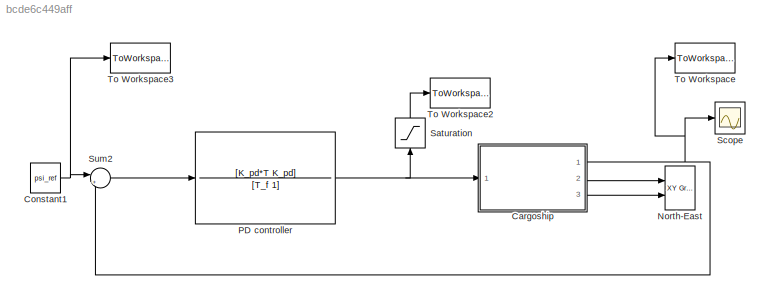
MODEL slx_bcde6c449aff
KIND model
CONFIG AbsTol = auto
CONFIG EnableMultiTasking = on
CONFIG FixedStep = auto
CONFIG MaxStep = auto
CONFIG MinStep = auto
CONFIG RelTol = 1e-3
CONFIG SampleTimeConstraint = Unconstrained
CONFIG Solver = ode45
CONFIG SolverName = ode45
CONFIG StartTime = 0.0
CONFIG StopTime = 5000
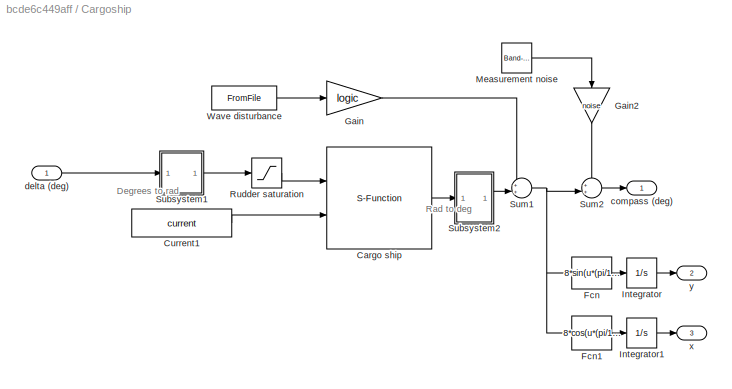
BLOCK [SubSystem] Cargoship
  Ports = [1, 3]
  RequestExecContextInheritance = off
  Variant = off
BLOCK [S-Function] Cargoship/Cargo ship
  EnableBusSupport = off
  FunctionName = Cargoship
  Ports = [2, 1]
  SFcnIsStateOwnerBlock = off
  SFunctionDeploymentMode = off
BLOCK [Constant] Cargoship/Current1
  Value = current
BLOCK [Fcn] Cargoship/Fcn
  Expr = 8*sin(u*(pi/180))
BLOCK [Fcn] Cargoship/Fcn1
  Expr = 8*cos(u*(pi/180))
BLOCK [Gain] Cargoship/Gain
  Gain = logic
BLOCK [Gain] Cargoship/Gain2
  Gain = noise
BLOCK [Integrator] Cargoship/Integrator
  Ports = [1, 1]
BLOCK [Integrator] Cargoship/Integrator1
  Ports = [1, 1]
BLOCK [Reference] Cargoship/Measurement noise  REF=simulink/Sources/Band-Limited
White Noise
  Ports = [0, 1]
  SourceBlock = simulink/Sources/Band-Limited\nWhite Noise
  SourceProductBaseCode = SL
  SourceProductName = Simulink
  SourceType = Band-Limited White Noise.
BLOCK [Saturate] Cargoship/Rudder saturation
  InputPortMap = u0
  LowerLimit = -45*(pi/180)
  Ports = [1, 1]
  UpperLimit = 45*(pi/180)
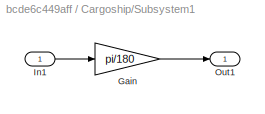
BLOCK [SubSystem] Cargoship/Subsystem1
  Ports = [1, 1]
  RequestExecContextInheritance = off
  Variant = off
BLOCK [Gain] Cargoship/Subsystem1/Gain
  Gain = pi/180
BLOCK [Inport] Cargoship/Subsystem1/In1
  IconDisplay = Port number
BLOCK [Outport] Cargoship/Subsystem1/Out1
  IconDisplay = Port number
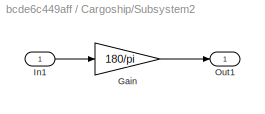
BLOCK [SubSystem] Cargoship/Subsystem2
  Ports = [1, 1]
  RequestExecContextInheritance = off
  Variant = off
BLOCK [Gain] Cargoship/Subsystem2/Gain
  Gain = 180/pi
BLOCK [Inport] Cargoship/Subsystem2/In1
  IconDisplay = Port number
BLOCK [Outport] Cargoship/Subsystem2/Out1
  IconDisplay = Port number
BLOCK [Sum] Cargoship/Sum1
  IconShape = round
  InputSameDT = off
  Inputs = ++|
  OutDataTypeStr = Inherit: Inherit via internal rule
  Ports = [2, 1]
BLOCK [Sum] Cargoship/Sum2
  IconShape = round
  InputSameDT = off
  Inputs = ++|
  OutDataTypeStr = Inherit: Inherit via internal rule
  Ports = [2, 1]
BLOCK [FromFile] Cargoship/Wave disturbance
  FileName = wave.mat
  SampleTime = 0
BLOCK [Outport] Cargoship/compass (deg)
  IconDisplay = Port number
BLOCK [Inport] Cargoship/delta (deg)
  IconDisplay = Port number
BLOCK [Outport] Cargoship/x
  IconDisplay = Port number
  Port = 3
BLOCK [Outport] Cargoship/y
  IconDisplay = Port number
  Port = 2
BLOCK [Constant] Constant1
  Value = psi_ref
BLOCK [Reference] North-East  REF=simulink/Sinks/XY Graph
  Ports = [2]
  SourceBlock = simulink/Sinks/XY Graph
  SourceProductBaseCode = SL
  SourceProductName = Simulink
  SourceType = XY scope.
BLOCK [TransferFcn] PD controller
  Denominator = [T_f 1]
  Numerator = [K_pd*T K_pd]
BLOCK [Saturate] Saturation
  InputPortMap = u0
  LowerLimit = -45
  Ports = [1, 1]
  UpperLimit = 45
BLOCK [Scope] Scope
  NumInputPorts = 1
  Ports = [1]
  ScopeSpecificationString = Simulink.scopes.TimeScopeBlockCfg('CurrentConfiguration', extmgr.ConfigurationSet(extmgr.Configuration('Core','General UI',true),extmgr.Configuration('Core','Source UI',true),extmgr.Configuration('Sources','WiredSimulink',true,'DataLoggingSaveFormat','StructureWithTime','DataLoggingLimitDataPoints',true,'DataLoggingDecimation','1','DataLoggingDecimateData',true),extmgr.Configuration('Visuals','Tim...<+1704ch>
BLOCK [Sum] Sum2
  IconShape = round
  InputSameDT = off
  Inputs = |+-
  OutDataTypeStr = Inherit: Inherit via internal rule
  Ports = [2, 1]
  SaturateOnIntegerOverflow = off
BLOCK [ToWorkspace] To Workspace
  FixptAsFi = on
  MaxDataPoints = 9999999
  Ports = [1]
  SampleTime = -1
  Save2DSignal = 3-D array (concatenate along third dimension)
  SaveFormat = Structure With Time
  VariableName = compass
BLOCK [ToWorkspace] To Workspace2
  FixptAsFi = on
  MaxDataPoints = 9999999
  Ports = [1]
  SampleTime = -1
  Save2DSignal = 3-D array (concatenate along third dimension)
  SaveFormat = Structure With Time
  VariableName = rudder
BLOCK [ToWorkspace] To Workspace3
  FixptAsFi = on
  MaxDataPoints = 9999999
  Ports = [1]
  SampleTime = -1
  Save2DSignal = 3-D array (concatenate along third dimension)
  SaveFormat = Structure With Time
  VariableName = compass_ref
ANNOTATION Cargoship: Degrees to rad
ANNOTATION Cargoship: Rad to deg
LINE Cargoship/Cargo ship:1 -> Cargoship/Subsystem2:1
LINE Cargoship/Current1:1 -> Cargoship/Cargo ship:2
LINE Cargoship/Fcn1:1 -> Cargoship/Integrator1:1
LINE Cargoship/Fcn:1 -> Cargoship/Integrator:1
LINE Cargoship/Gain2:1 -> Cargoship/Sum2:1
LINE Cargoship/Gain:1 -> Cargoship/Sum1:1
LINE Cargoship/Integrator1:1 -> Cargoship/x:1
LINE Cargoship/Integrator:1 -> Cargoship/y:1
LINE Cargoship/Measurement noise:1 -> Cargoship/Gain2:1
LINE Cargoship/Rudder saturation:1 -> Cargoship/Cargo ship:1
LINE Cargoship/Subsystem1/Gain:1 -> Cargoship/Subsystem1/Out1:1
LINE Cargoship/Subsystem1/In1:1 -> Cargoship/Subsystem1/Gain:1
LINE Cargoship/Subsystem1:1 -> Cargoship/Rudder saturation:1
LINE Cargoship/Subsystem2/Gain:1 -> Cargoship/Subsystem2/Out1:1
LINE Cargoship/Subsystem2/In1:1 -> Cargoship/Subsystem2/Gain:1
LINE Cargoship/Subsystem2:1 -> Cargoship/Sum1:2
NET Cargoship/Sum1:1 -> Cargoship/Fcn1:1, Cargoship/Fcn:1, Cargoship/Sum2:2
LINE Cargoship/Sum2:1 -> Cargoship/compass (deg):1
LINE Cargoship/Wave disturbance:1 -> Cargoship/Gain:1
LINE Cargoship/delta (deg):1 -> Cargoship/Subsystem1:1
NET Cargoship:1 -> Scope:1, Sum2:2, To Workspace:1
LINE Cargoship:2 -> North-East:1
LINE Cargoship:3 -> North-East:2
NET Constant1:1 -> Sum2:1, To Workspace3:1
NET PD controller:1 -> Cargoship:1, Saturation:1
LINE Saturation:1 -> To Workspace2:1
LINE Sum2:1 -> PD controller:1
note: NET lines group one-source signal fan-out (src -> all destinations, sorted); 1:1 wires keep LINE
